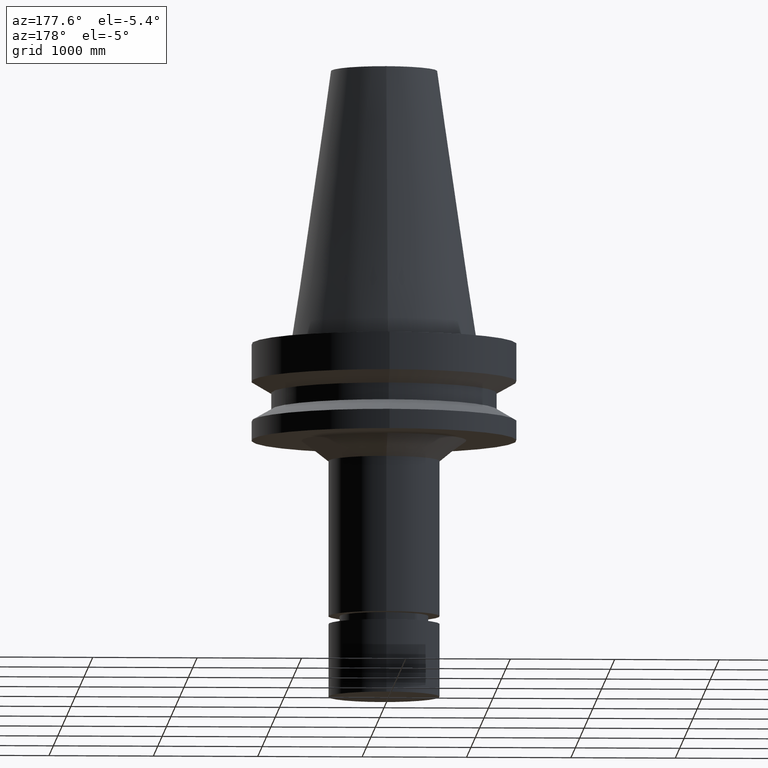
[diagram: clean part render]
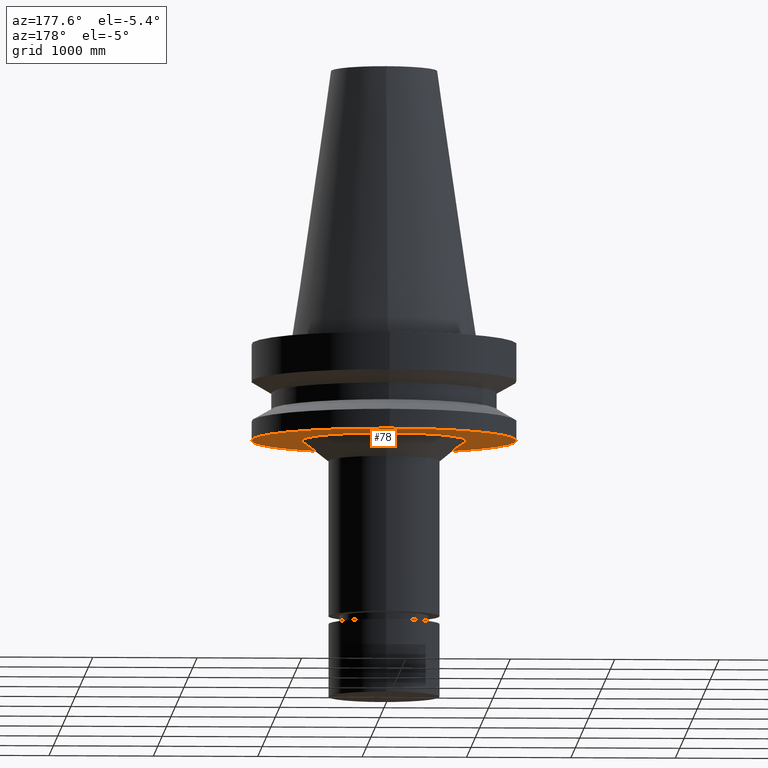
[diagram: same view with one face highlighted and labeled with its STEP entity id]
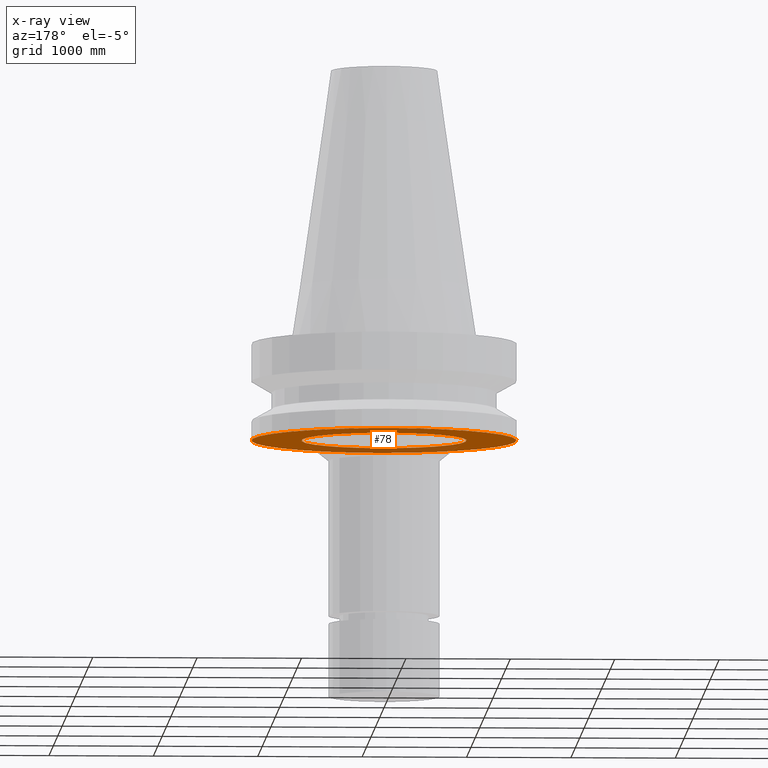
[diagram: x-ray of the same camera — body ghosted, the highlighted face saturated]
A machine part, auxiliary view. The second image highlights one B-rep face of the part: STEP entity #78.
The next image is the same camera in x-ray: the body ghosted, the highlighted face saturated — about 23% of this face is hidden behind the body in this view.
In plain terms, the highlighted planar face has unit normal (0, 0, -1).
Its self-contained STEP definition (entity closure, byte-faithful):
#78=ADVANCED_FACE('Unnamed[1]',(#205,#206),#207,.T.);
#102=EDGE_CURVE('Unnamed[1]',#242,#242,#243,.T.);
#165=EDGE_CURVE('Unnamed[1]',#339,#339,#340,.T.);
#205=FACE_OUTER_BOUND('',#382,.T.);
#206=FACE_BOUND('',#383,.T.);
#207=PLANE('',#384);
#242=VERTEX_POINT('',#428);
#243=CIRCLE('',#429,50.0);
#339=VERTEX_POINT('',#548);
#340=CIRCLE('',#549,31.1435726989081);
#382=EDGE_LOOP('',(#584));
#383=EDGE_LOOP('',(#585));
#384=AXIS2_PLACEMENT_3D('',#586,#587,#588);
#428=CARTESIAN_POINT('',(2.32682891837996E-015,50.0,-37.9999999999998));
#429=AXIS2_PLACEMENT_3D('',#623,#624,#625);
#548=CARTESIAN_POINT('',(2.32682891837996E-015,31.1435726989082,-37.9999999999998));
#549=AXIS2_PLACEMENT_3D('',#732,#733,#734);
#584=ORIENTED_EDGE('',*,*,#102,.F.);
#585=ORIENTED_EDGE('',*,*,#165,.T.);
#586=CARTESIAN_POINT('',(2.32682891837996E-015,40.5717863494541,-37.9999999999998));
#587=DIRECTION('',(6.12323399573677E-017,2.38336826811129E-015,-1.0));
#588=DIRECTION('',(1.50766368767362E-031,-1.0,-2.38336826811129E-015));
#623=CARTESIAN_POINT('',(2.32682891837996E-015,1.51595204833261E-014,-37.9999999999998));
#624=DIRECTION('',(-6.12323399573677E-017,-1.52619998477039E-017,1.0));
#625=DIRECTION('',(-5.76168069386964E-033,1.0,1.52619998477039E-017));
#732=CARTESIAN_POINT('',(2.32682891837996E-015,1.51595204833261E-014,-37.9999999999998));
#733=DIRECTION('',(-6.12323399573677E-017,-1.5261999847758E-017,1.0));
#734=DIRECTION('',(-5.76168069387924E-033,1.0,1.5261999847758E-017));